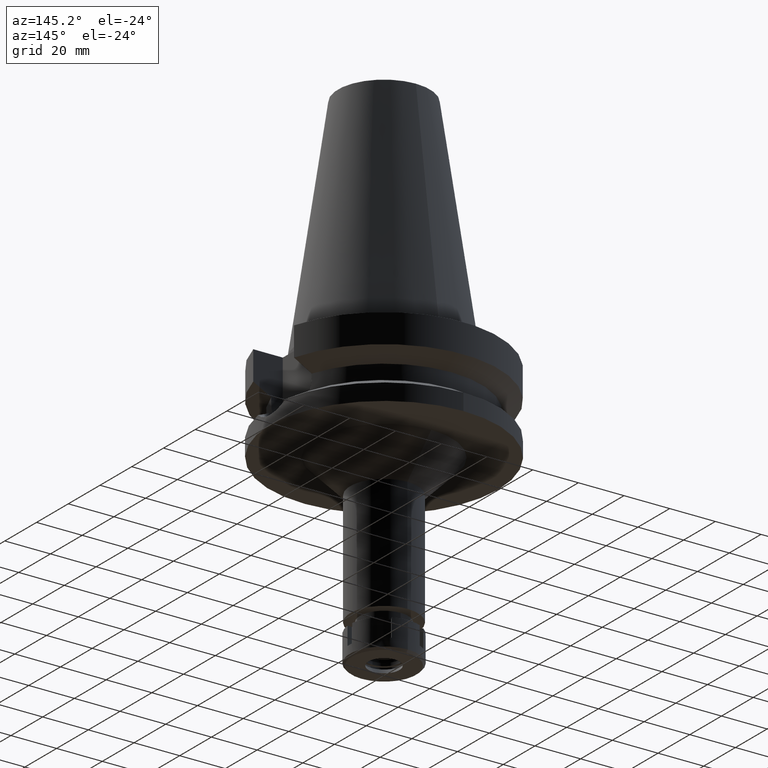
[diagram: clean part render]
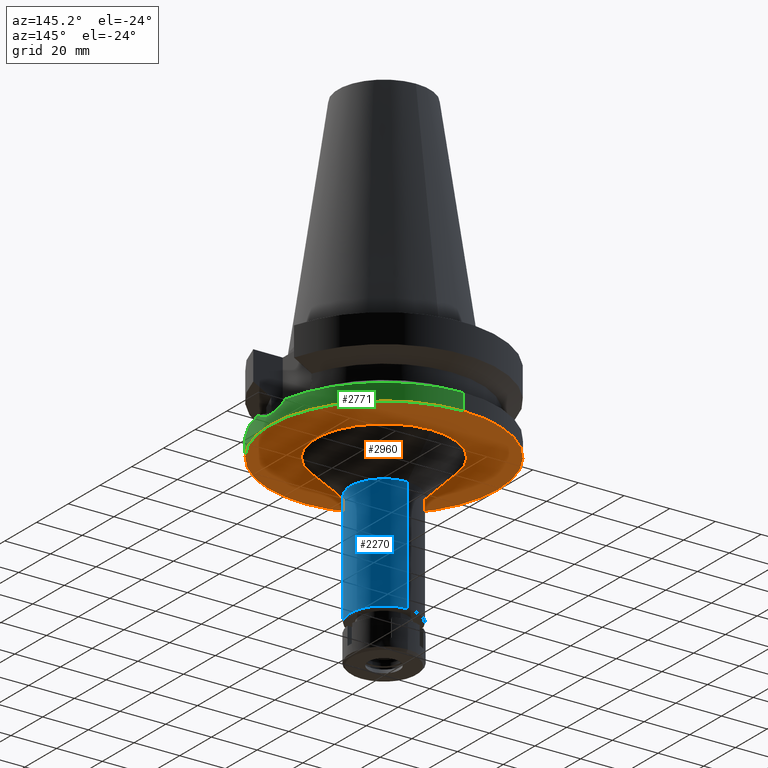
[diagram: same view with three faces highlighted in distinct colors, each labeled with its STEP entity id]
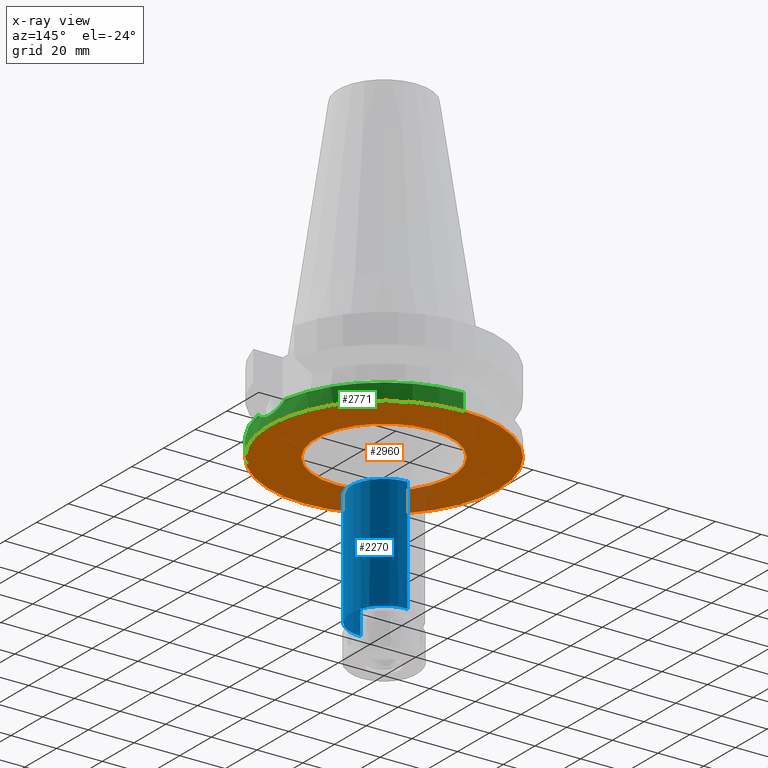
[diagram: x-ray of the same camera — body ghosted, the three highlighted faces saturated]
A machine part, auxiliary view with three faces highlighted in distinct colors.
The next image is the same camera in x-ray (body ghosted, the three faces saturated) — at least one of them is partly hidden behind the body in this view.
Their STEP definitions:

[orange] entity #2960 — the highlighted planar face has unit normal (0, 0, -1).
#38 = DIRECTION ( 'NONE',  ( 0.0000000000000000000, -1.000000000000000000, 0.0000000000000000000 ) ) ;
#62 = ORIENTED_EDGE ( 'NONE', *, *, #2710, .F. ) ;
#292 = ORIENTED_EDGE ( 'NONE', *, *, #3474, .F. ) ;
#317 = DIRECTION ( 'NONE',  ( 0.0000000000000000000, -1.000000000000000000, 0.0000000000000000000 ) ) ;
#323 = FACE_BOUND ( 'NONE', #3407, .T. ) ;
#554 = EDGE_CURVE ( 'NONE', #3528, #3024, #690, .T. ) ;
#644 = EDGE_LOOP ( 'NONE', ( #62, #292 ) ) ;
#690 = CIRCLE ( 'NONE', #2694, 29.75000000000000000 ) ;
#788 = EDGE_CURVE ( 'NONE', #3024, #3528, #1877, .T. ) ;
#821 = CARTESIAN_POINT ( 'NONE',  ( 0.0000000000000000000, 2.602864306907999599E-14, -38.00000000000000000 ) ) ;
#879 = DIRECTION ( 'NONE',  ( 0.0000000000000000000, 1.000000000000000000, 0.0000000000000000000 ) ) ;
#1021 = CARTESIAN_POINT ( 'NONE',  ( 0.0000000000000000000, 2.602864306907999599E-14, -38.00000000000000000 ) ) ;
#1218 = FACE_OUTER_BOUND ( 'NONE', #644, .T. ) ;
#1239 = CARTESIAN_POINT ( 'NONE',  ( 0.0000000000000000000, 0.0000000000000000000, -38.00000000000000000 ) ) ;
#1307 = CARTESIAN_POINT ( 'NONE',  ( 0.0000000000000000000, -50.00000000000000000, -38.00000000000000000 ) ) ;
#1430 = DIRECTION ( 'NONE',  ( 0.0000000000000000000, 0.0000000000000000000, -1.000000000000000000 ) ) ;
#1464 = DIRECTION ( 'NONE',  ( 0.0000000000000000000, -1.000000000000000000, 0.0000000000000000000 ) ) ;
#1482 = PLANE ( 'NONE',  #1776 ) ;
#1499 = CARTESIAN_POINT ( 'NONE',  ( 0.0000000000000000000, -29.75000000000000000, -38.00000000000000000 ) ) ;
#1565 = ORIENTED_EDGE ( 'NONE', *, *, #788, .F. ) ;
#1622 = CARTESIAN_POINT ( 'NONE',  ( 0.0000000000000000000, 50.00000000000000000, -38.00000000000000000 ) ) ;
#1646 = AXIS2_PLACEMENT_3D ( 'NONE', #1021, #3219, #3289 ) ;
#1776 = AXIS2_PLACEMENT_3D ( 'NONE', #1239, #2611, #1464 ) ;
#1877 = CIRCLE ( 'NONE', #2819, 29.75000000000000000 ) ;
#2075 = CIRCLE ( 'NONE', #1646, 50.00000000000000000 ) ;
#2209 = CARTESIAN_POINT ( 'NONE',  ( 0.0000000000000000000, 0.0000000000000000000, -38.00000000000000000 ) ) ;
#2240 = AXIS2_PLACEMENT_3D ( 'NONE', #821, #2326, #317 ) ;
#2311 = CARTESIAN_POINT ( 'NONE',  ( 0.0000000000000000000, 29.75000000000000000, -38.00000000000000000 ) ) ;
#2326 = DIRECTION ( 'NONE',  ( 0.0000000000000000000, 0.0000000000000000000, 1.000000000000000000 ) ) ;
#2564 = ORIENTED_EDGE ( 'NONE', *, *, #554, .F. ) ;
#2611 = DIRECTION ( 'NONE',  ( 0.0000000000000000000, 0.0000000000000000000, -1.000000000000000000 ) ) ;
#2694 = AXIS2_PLACEMENT_3D ( 'NONE', #2209, #3130, #879 ) ;
#2710 = EDGE_CURVE ( 'NONE', #3291, #3328, #2075, .T. ) ;
#2819 = AXIS2_PLACEMENT_3D ( 'NONE', #3175, #1430, #38 ) ;
#2960 = ADVANCED_FACE ( 'NONE', ( #1218, #323 ), #1482, .T. ) ;
#3024 = VERTEX_POINT ( 'NONE', #1499 ) ;
#3130 = DIRECTION ( 'NONE',  ( 0.0000000000000000000, 0.0000000000000000000, -1.000000000000000000 ) ) ;
#3175 = CARTESIAN_POINT ( 'NONE',  ( 0.0000000000000000000, 0.0000000000000000000, -38.00000000000000000 ) ) ;
#3219 = DIRECTION ( 'NONE',  ( 0.0000000000000000000, 0.0000000000000000000, 1.000000000000000000 ) ) ;
#3289 = DIRECTION ( 'NONE',  ( 0.0000000000000000000, 1.000000000000000000, 0.0000000000000000000 ) ) ;
#3291 = VERTEX_POINT ( 'NONE', #1622 ) ;
#3328 = VERTEX_POINT ( 'NONE', #1307 ) ;
#3369 = CIRCLE ( 'NONE', #2240, 50.00000000000000000 ) ;
#3407 = EDGE_LOOP ( 'NONE', ( #2564, #1565 ) ) ;
#3474 = EDGE_CURVE ( 'NONE', #3328, #3291, #3369, .T. ) ;
#3528 = VERTEX_POINT ( 'NONE', #2311 ) ;

[blue] entity #2270 — the highlighted cylindrical surface (partial cylindrical patch) has radius 14.75 mm, axis along (0, 0, -1).
#20 = LINE ( 'NONE', #1134, #2303 ) ;
#117 = EDGE_CURVE ( 'NONE', #245, #3584, #1457, .T. ) ;
#245 = VERTEX_POINT ( 'NONE', #3193 ) ;
#405 = EDGE_CURVE ( 'NONE', #1041, #3584, #1590, .T. ) ;
#493 = VERTEX_POINT ( 'NONE', #2696 ) ;
#794 = EDGE_LOOP ( 'NONE', ( #998, #3084, #1217, #2986 ) ) ;
#929 = VECTOR ( 'NONE', #3302, 1000.000000000000000 ) ;
#998 = ORIENTED_EDGE ( 'NONE', *, *, #2046, .T. ) ;
#1041 = VERTEX_POINT ( 'NONE', #2057 ) ;
#1094 = CYLINDRICAL_SURFACE ( 'NONE', #2878, 14.75000000000000000 ) ;
#1134 = CARTESIAN_POINT ( 'NONE',  ( 0.0000000000000000000, -14.75000000000000000, -53.00000000000000000 ) ) ;
#1165 = DIRECTION ( 'NONE',  ( 0.0000000000000000000, -1.000000000000000000, 0.0000000000000000000 ) ) ;
#1213 = DIRECTION ( 'NONE',  ( 0.0000000000000000000, 1.000000000000000000, 0.0000000000000000000 ) ) ;
#1217 = ORIENTED_EDGE ( 'NONE', *, *, #117, .T. ) ;
#1220 = CIRCLE ( 'NONE', #2583, 14.75000000000000000 ) ;
#1380 = FACE_OUTER_BOUND ( 'NONE', #794, .T. ) ;
#1457 = CIRCLE ( 'NONE', #2752, 14.75000000000000000 ) ;
#1590 = LINE ( 'NONE', #2456, #929 ) ;
#1703 = DIRECTION ( 'NONE',  ( 0.0000000000000000000, 0.0000000000000000000, 1.000000000000000000 ) ) ;
#1941 = DIRECTION ( 'NONE',  ( 0.0000000000000000000, -1.000000000000000000, 0.0000000000000000000 ) ) ;
#2046 = EDGE_CURVE ( 'NONE', #1041, #493, #1220, .T. ) ;
#2057 = CARTESIAN_POINT ( 'NONE',  ( 0.0000000000000000000, 14.75000000000000000, -53.00000000000000000 ) ) ;
#2269 = DIRECTION ( 'NONE',  ( 0.0000000000000000000, 0.0000000000000000000, -1.000000000000000000 ) ) ;
#2270 = ADVANCED_FACE ( 'NONE', ( #1380 ), #1094, .T. ) ;
#2303 = VECTOR ( 'NONE', #2269, 1000.000000000000000 ) ;
#2456 = CARTESIAN_POINT ( 'NONE',  ( 0.0000000000000000000, 14.75000000000000000, -53.00000000000000000 ) ) ;
#2488 = DIRECTION ( 'NONE',  ( 0.0000000000000000000, 0.0000000000000000000, -1.000000000000000000 ) ) ;
#2543 = EDGE_CURVE ( 'NONE', #493, #245, #20, .T. ) ;
#2583 = AXIS2_PLACEMENT_3D ( 'NONE', #3429, #2621, #1213 ) ;
#2621 = DIRECTION ( 'NONE',  ( 0.0000000000000000000, 0.0000000000000000000, -1.000000000000000000 ) ) ;
#2696 = CARTESIAN_POINT ( 'NONE',  ( 0.0000000000000000000, -14.75000000000000000, -53.00000000000000000 ) ) ;
#2718 = CARTESIAN_POINT ( 'NONE',  ( 0.0000000000000000000, 14.75000000000000000, -103.0000000000000000 ) ) ;
#2752 = AXIS2_PLACEMENT_3D ( 'NONE', #3154, #1703, #1165 ) ;
#2878 = AXIS2_PLACEMENT_3D ( 'NONE', #3088, #2488, #1941 ) ;
#2986 = ORIENTED_EDGE ( 'NONE', *, *, #405, .F. ) ;
#3084 = ORIENTED_EDGE ( 'NONE', *, *, #2543, .T. ) ;
#3088 = CARTESIAN_POINT ( 'NONE',  ( 0.0000000000000000000, 2.602864306907999599E-14, 112.5400000000000063 ) ) ;
#3154 = CARTESIAN_POINT ( 'NONE',  ( 0.0000000000000000000, 2.602864306907999599E-14, -103.0000000000000000 ) ) ;
#3193 = CARTESIAN_POINT ( 'NONE',  ( 0.0000000000000000000, -14.75000000000000000, -103.0000000000000000 ) ) ;
#3302 = DIRECTION ( 'NONE',  ( 0.0000000000000000000, 0.0000000000000000000, -1.000000000000000000 ) ) ;
#3429 = CARTESIAN_POINT ( 'NONE',  ( 0.0000000000000000000, 0.0000000000000000000, -53.00000000000000000 ) ) ;
#3584 = VERTEX_POINT ( 'NONE', #2718 ) ;

[green] entity #2771 — the highlighted cylindrical surface (partial cylindrical patch) has radius 50 mm, axis along (0, 0, -1).
#53 = CARTESIAN_POINT ( 'NONE',  ( 49.66986618801640674, 5.762088536633296343, -32.66233170620392912 ) ) ;
#190 = CARTESIAN_POINT ( 'NONE',  ( 50.00000000000000000, -0.7410781191930458922, -34.00000000000000000 ) ) ;
#208 = CARTESIAN_POINT ( 'NONE',  ( 49.73404098634049575, -5.148335372367610852, -32.92469446710218506 ) ) ;
#220 = VECTOR ( 'NONE', #2698, 1000.000000000000000 ) ;
#244 = CARTESIAN_POINT ( 'NONE',  ( 49.75681412773608514, -4.924294299456529522, -33.01930483968350671 ) ) ;
#250 = CARTESIAN_POINT ( 'NONE',  ( 49.79347791493477615, 4.539715724478320169, -33.17137768955549149 ) ) ;
#263 = CARTESIAN_POINT ( 'NONE',  ( 49.26250064874000145, 8.556052234130000045, -30.73730776426999967 ) ) ;
#304 = CARTESIAN_POINT ( 'NONE',  ( 49.79509875744957270, 4.521875388874531332, -33.17810981393785852 ) ) ;
#317 = DIRECTION ( 'NONE',  ( 0.0000000000000000000, -1.000000000000000000, 0.0000000000000000000 ) ) ;
#321 = CARTESIAN_POINT ( 'NONE',  ( 49.80628862109802668, 4.396903292153295340, -33.22452887383012410 ) ) ;
#339 = AXIS2_PLACEMENT_3D ( 'NONE', #910, #3179, #635 ) ;
#401 = VERTEX_POINT ( 'NONE', #2776 ) ;
#403 = CARTESIAN_POINT ( 'NONE',  ( 49.26250064874000145, -8.556052234130000045, -30.73730776426999967 ) ) ;
#435 = LINE ( 'NONE', #977, #220 ) ;
#498 = VERTEX_POINT ( 'NONE', #2155 ) ;
#562 = EDGE_CURVE ( 'NONE', #2660, #1337, #2025, .T. ) ;
#609 = FACE_OUTER_BOUND ( 'NONE', #1521, .T. ) ;
#635 = DIRECTION ( 'NONE',  ( 0.0000000000000000000, 1.000000000000000000, 0.0000000000000000000 ) ) ;
#639 = AXIS2_PLACEMENT_3D ( 'NONE', #2416, #1828, #3258 ) ;
#751 = CARTESIAN_POINT ( 'NONE',  ( 49.78850586346745644, -4.594055356228460063, -33.15072133027665302 ) ) ;
#821 = CARTESIAN_POINT ( 'NONE',  ( 0.0000000000000000000, 2.602864306907999599E-14, -38.00000000000000000 ) ) ;
#828 = CARTESIAN_POINT ( 'NONE',  ( 49.82079234874857576, 4.230048365474204708, -33.28454251577284850 ) ) ;
#910 = CARTESIAN_POINT ( 'NONE',  ( 0.0000000000000000000, 0.0000000000000000000, -30.73730776426999967 ) ) ;
#977 = CARTESIAN_POINT ( 'NONE',  ( 0.0000000000000000000, 50.00000000000000000, -30.73730776426999967 ) ) ;
#1036 = DIRECTION ( 'NONE',  ( 0.0000000000000000000, -1.000000000000000000, 0.0000000000000000000 ) ) ;
#1079 = CARTESIAN_POINT ( 'NONE',  ( 49.71771672573441947, -5.301668118199026836, -32.85661610141634981 ) ) ;
#1103 = CARTESIAN_POINT ( 'NONE',  ( 49.86956835087084983, 3.608176226007482779, -33.48463187136983521 ) ) ;
#1114 = ORIENTED_EDGE ( 'NONE', *, *, #3597, .F. ) ;
#1116 = DIRECTION ( 'NONE',  ( 0.0000000000000000000, -2.054527022025999694E-14, -1.000000000000000000 ) ) ;
#1123 = CARTESIAN_POINT ( 'NONE',  ( 49.79885843275243218, 4.480234919381074654, -33.19371722162811267 ) ) ;
#1159 = CARTESIAN_POINT ( 'NONE',  ( 49.84837320788734871, 3.895659733934834001, -33.39815592388249144 ) ) ;
#1307 = CARTESIAN_POINT ( 'NONE',  ( 0.0000000000000000000, -50.00000000000000000, -38.00000000000000000 ) ) ;
#1337 = VERTEX_POINT ( 'NONE', #2484 ) ;
#1346 = CARTESIAN_POINT ( 'NONE',  ( 49.78972506718682922, -4.580790312868233016, -33.15578537449465557 ) ) ;
#1350 = B_SPLINE_CURVE_WITH_KNOTS ( 'NONE', 3,
 ( #3637, #3294, #2746, #2993, #2237, #1079, #208, #244, #2452, #2435, #2709, #751, #1346, #2219, #2206, #2471, #2507, #2728, #190, #1661 ),
 .UNSPECIFIED., .F., .F.,
 ( 4, 2, 2, 2, 1, 1, 1, 1, 2, 2, 2, 4 ),
 ( 0.0000000000000000000, 0.2500000000000158207, 0.3750000000000234812, 0.4375000000000275890, 0.4687500000000294209, 0.4843750000000303646, 0.4921875000000306977, 0.4960937500000303646, 0.4980468750000295319, 0.5000000000000286438, 0.7500000000000143219, 1.000000000000000000 ),
 .UNSPECIFIED. ) ;
#1462 = CARTESIAN_POINT ( 'NONE',  ( 49.38718636585389277, 7.838159209151078777, -31.37798086784263063 ) ) ;
#1521 = EDGE_LOOP ( 'NONE', ( #3499, #2483, #3215, #1114, #3185, #3066, #3668 ) ) ;
#1622 = CARTESIAN_POINT ( 'NONE',  ( 0.0000000000000000000, 50.00000000000000000, -38.00000000000000000 ) ) ;
#1661 = CARTESIAN_POINT ( 'NONE',  ( 50.00000000000000000, 1.760674703134000068E-14, -34.00000000000000000 ) ) ;
#1740 = CARTESIAN_POINT ( 'NONE',  ( 49.98260911344944191, 1.500697552787619404, -33.93573404311443653 ) ) ;
#1824 = CARTESIAN_POINT ( 'NONE',  ( 50.00000000000000000, 1.760674703134000068E-14, -34.00000000000000000 ) ) ;
#1828 = DIRECTION ( 'NONE',  ( 0.0000000000000000000, 0.0000000000000000000, -1.000000000000000000 ) ) ;
#1905 = LINE ( 'NONE', #2185, #3479 ) ;
#1920 = CARTESIAN_POINT ( 'NONE',  ( 0.0000000000000000000, 2.602864306907999599E-14, 112.5400000000000063 ) ) ;
#1989 = CARTESIAN_POINT ( 'NONE',  ( 49.79171236025092639, 4.559090087513555822, -33.16404260905380852 ) ) ;
#2025 = B_SPLINE_CURVE_WITH_KNOTS ( 'NONE', 3,
 ( #2829, #3655, #1740, #3675, #2030, #1103, #1159, #828, #321, #1123, #304, #250, #3412, #1989, #3148, #53, #3097, #1462, #263 ),
 .UNSPECIFIED., .F., .F.,
 ( 4, 2, 2, 1, 1, 1, 1, 1, 2, 2, 2, 4 ),
 ( 0.0000000000000000000, 0.2499999999999581446, 0.3749999999999371059, 0.4374999999999263922, 0.4687499999999206746, 0.4843749999999178990, 0.4921874999999162337, 0.4960937499999155120, 0.4980468749999152345, 0.4999999999999149569, 0.7499999999999574785, 1.000000000000000000 ),
 .UNSPECIFIED. ) ;
#2030 = CARTESIAN_POINT ( 'NONE',  ( 49.90869784560958067, 3.032821730095363044, -33.64331055701466511 ) ) ;
#2155 = CARTESIAN_POINT ( 'NONE',  ( 0.0000000000000000000, -50.00000000000000000, -30.73730776426999967 ) ) ;
#2185 = CARTESIAN_POINT ( 'NONE',  ( 0.0000000000000000000, -50.00000000000000000, -30.73730776426999967 ) ) ;
#2206 = CARTESIAN_POINT ( 'NONE',  ( 49.79079948641094688, -4.569077029232611942, -33.16024877062687182 ) ) ;
#2219 = CARTESIAN_POINT ( 'NONE',  ( 49.79053563887279665, -4.571955316145258408, -33.15915263189156548 ) ) ;
#2237 = CARTESIAN_POINT ( 'NONE',  ( 49.66531744488912636, -5.772426570596381978, -32.63572039590668084 ) ) ;
#2240 = AXIS2_PLACEMENT_3D ( 'NONE', #821, #2326, #317 ) ;
#2279 = DIRECTION ( 'NONE',  ( 0.0000000000000000000, 0.0000000000000000000, -1.000000000000000000 ) ) ;
#2298 = CYLINDRICAL_SURFACE ( 'NONE', #2531, 50.00000000000000000 ) ;
#2299 = CIRCLE ( 'NONE', #339, 50.00000000000000000 ) ;
#2326 = DIRECTION ( 'NONE',  ( 0.0000000000000000000, 0.0000000000000000000, 1.000000000000000000 ) ) ;
#2373 = EDGE_CURVE ( 'NONE', #498, #3328, #1905, .T. ) ;
#2416 = CARTESIAN_POINT ( 'NONE',  ( 0.0000000000000000000, 0.0000000000000000000, -30.73730776426999967 ) ) ;
#2435 = CARTESIAN_POINT ( 'NONE',  ( 49.77980747409930018, -4.687522623449121184, -33.11462325494490244 ) ) ;
#2452 = CARTESIAN_POINT ( 'NONE',  ( 49.76777238605546216, -4.813761785054659015, -33.06473290391307529 ) ) ;
#2471 = CARTESIAN_POINT ( 'NONE',  ( 49.86089524291223540, -3.802281370536686911, -33.45152773127077239 ) ) ;
#2483 = ORIENTED_EDGE ( 'NONE', *, *, #2373, .T. ) ;
#2484 = CARTESIAN_POINT ( 'NONE',  ( 49.26250064874000145, 8.556052234130000045, -30.73730776426999967 ) ) ;
#2507 = CARTESIAN_POINT ( 'NONE',  ( 49.91305952682014180, -3.031241889032393111, -33.66153705298677323 ) ) ;
#2531 = AXIS2_PLACEMENT_3D ( 'NONE', #1920, #2279, #1036 ) ;
#2608 = VERTEX_POINT ( 'NONE', #403 ) ;
#2660 = VERTEX_POINT ( 'NONE', #1824 ) ;
#2698 = DIRECTION ( 'NONE',  ( 0.0000000000000000000, 2.152361642122000014E-14, -1.000000000000000000 ) ) ;
#2709 = CARTESIAN_POINT ( 'NONE',  ( 49.78563763145564280, -4.625094769496364222, -33.13881278611463443 ) ) ;
#2728 = CARTESIAN_POINT ( 'NONE',  ( 49.98261190536402410, -1.500633726180415461, -33.93573757113509259 ) ) ;
#2746 = CARTESIAN_POINT ( 'NONE',  ( 49.49360537171575913, -7.117033888474672665, -31.87769203056706147 ) ) ;
#2771 = ADVANCED_FACE ( 'NONE', ( #609 ), #2298, .T. ) ;
#2776 = CARTESIAN_POINT ( 'NONE',  ( 0.0000000000000000000, 50.00000000000000000, -30.73730776426999967 ) ) ;
#2829 = CARTESIAN_POINT ( 'NONE',  ( 50.00000000000000000, 1.760674703134000068E-14, -34.00000000000000000 ) ) ;
#2993 = CARTESIAN_POINT ( 'NONE',  ( 49.62581592562284527, -6.100685968262092196, -32.46624463480475242 ) ) ;
#3066 = ORIENTED_EDGE ( 'NONE', *, *, #562, .F. ) ;
#3097 = CARTESIAN_POINT ( 'NONE',  ( 49.49359661713197056, 7.117097517633721004, -31.87764506041104084 ) ) ;
#3148 = CARTESIAN_POINT ( 'NONE',  ( 49.73972550762279354, 5.127766568413889559, -32.94800241987121581 ) ) ;
#3179 = DIRECTION ( 'NONE',  ( 0.0000000000000000000, 0.0000000000000000000, -1.000000000000000000 ) ) ;
#3185 = ORIENTED_EDGE ( 'NONE', *, *, #3664, .T. ) ;
#3215 = ORIENTED_EDGE ( 'NONE', *, *, #3474, .T. ) ;
#3216 = EDGE_CURVE ( 'NONE', #2608, #498, #3490, .T. ) ;
#3258 = DIRECTION ( 'NONE',  ( 0.9852500129747439050, -0.1711210446826074982, 0.0000000000000000000 ) ) ;
#3291 = VERTEX_POINT ( 'NONE', #1622 ) ;
#3294 = CARTESIAN_POINT ( 'NONE',  ( 49.38719034096670413, -7.838136321931843398, -31.37800129320583764 ) ) ;
#3328 = VERTEX_POINT ( 'NONE', #1307 ) ;
#3346 = EDGE_CURVE ( 'NONE', #2608, #2660, #1350, .T. ) ;
#3369 = CIRCLE ( 'NONE', #2240, 50.00000000000000000 ) ;
#3412 = CARTESIAN_POINT ( 'NONE',  ( 49.79239523034728165, 4.551608024979297618, -33.16687999444791046 ) ) ;
#3474 = EDGE_CURVE ( 'NONE', #3328, #3291, #3369, .T. ) ;
#3479 = VECTOR ( 'NONE', #1116, 1000.000000000000000 ) ;
#3490 = CIRCLE ( 'NONE', #639, 50.00000000000000000 ) ;
#3499 = ORIENTED_EDGE ( 'NONE', *, *, #3216, .T. ) ;
#3597 = EDGE_CURVE ( 'NONE', #401, #3291, #435, .T. ) ;
#3637 = CARTESIAN_POINT ( 'NONE',  ( 49.26250064874000145, -8.556052234130000045, -30.73730776426999967 ) ) ;
#3655 = CARTESIAN_POINT ( 'NONE',  ( 50.00000000000000711, 0.7410986935507746232, -34.00000000000001421 ) ) ;
#3664 = EDGE_CURVE ( 'NONE', #401, #1337, #2299, .T. ) ;
#3668 = ORIENTED_EDGE ( 'NONE', *, *, #3346, .F. ) ;
#3675 = CARTESIAN_POINT ( 'NONE',  ( 49.93043645379776763, 2.648747845221362862, -33.73005492412431749 ) ) ;